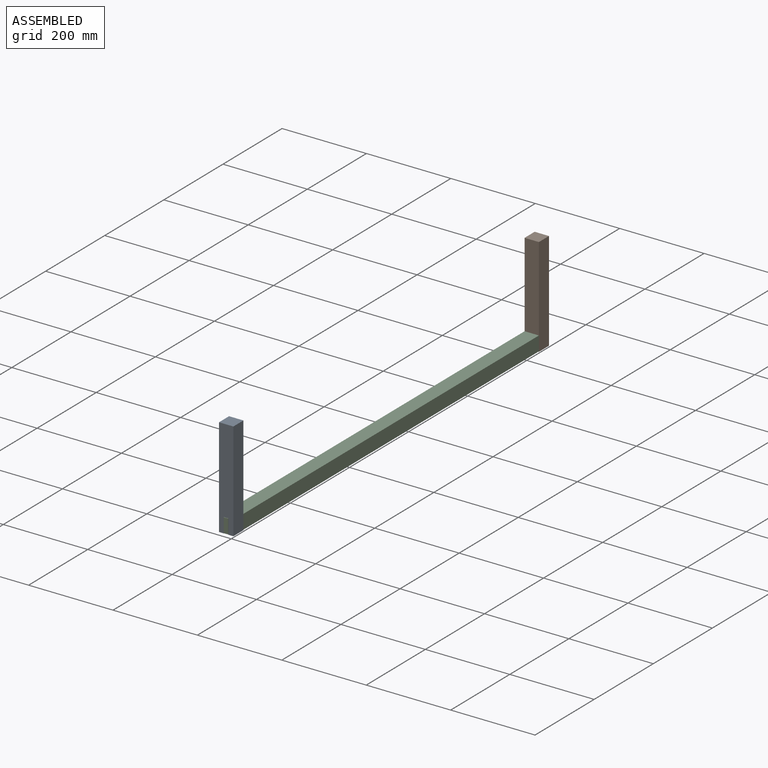
[diagram: assembled view]
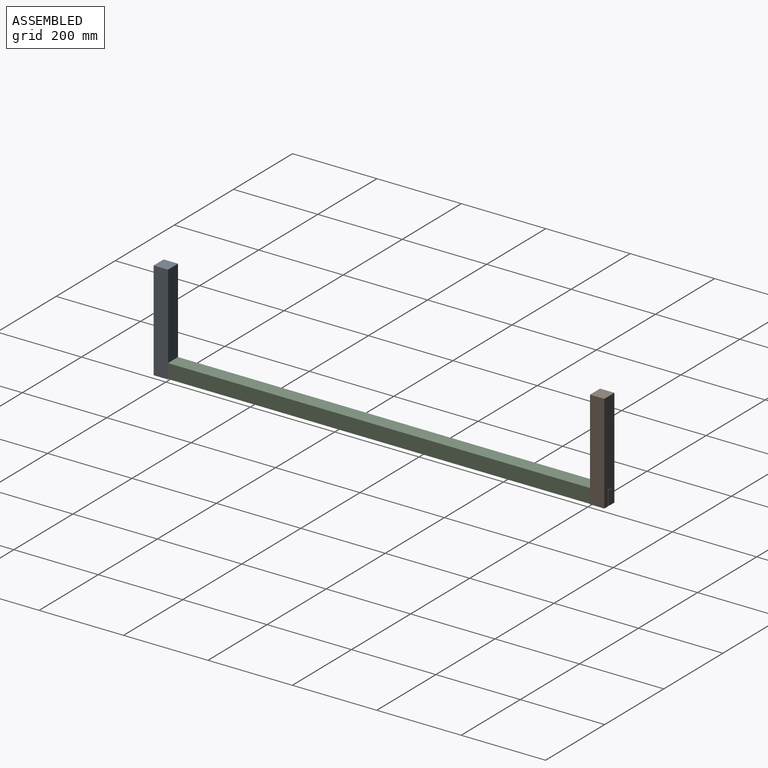
[diagram: assembled view, second angle]
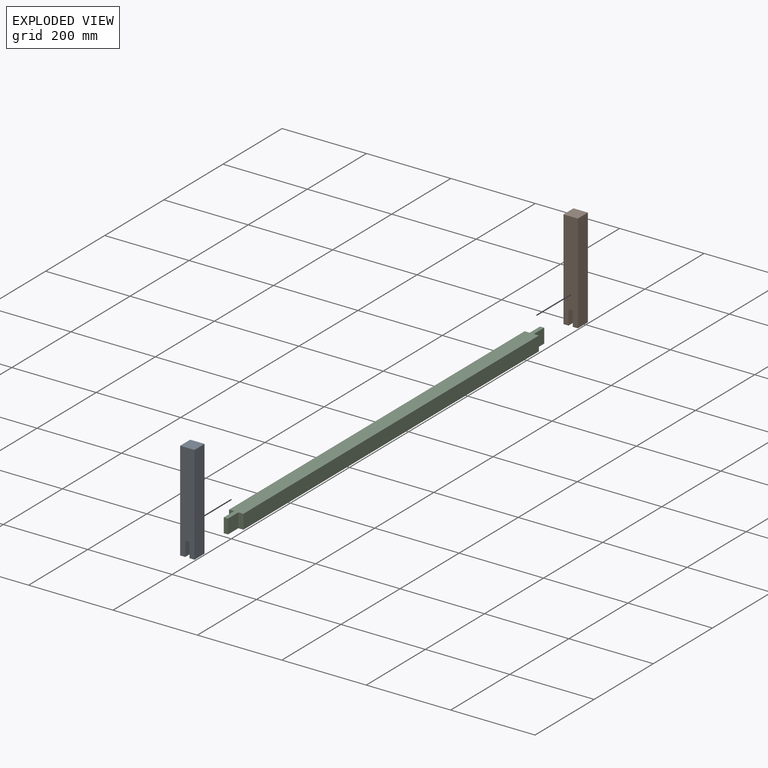
[diagram: exploded view]
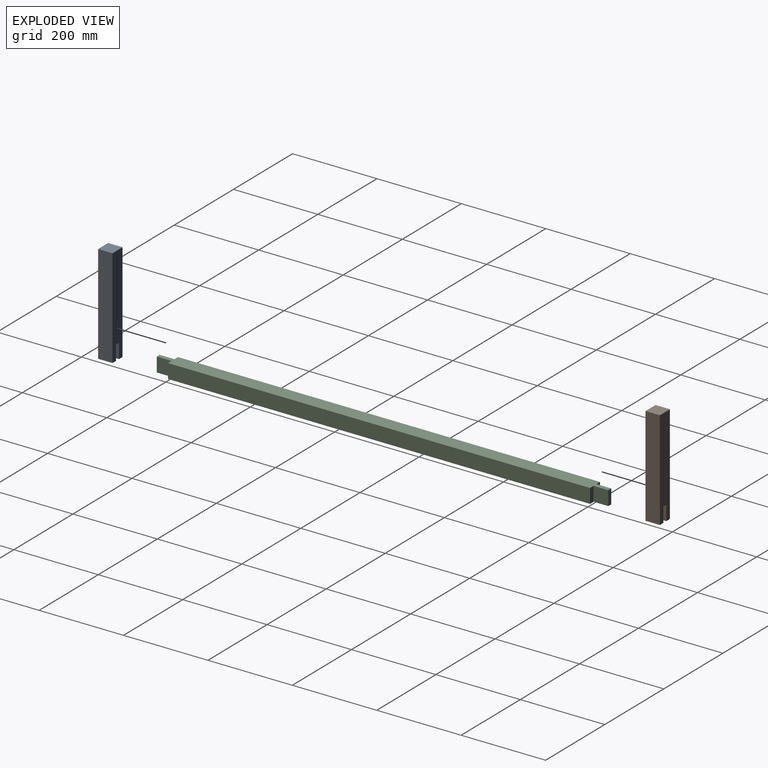
[diagram: exploded view, second angle]
FCSTD DOCUMENT  (FreeCAD 1.0R39109 (Git))
Label: 10_assembly_u-shape
License: All rights reserved
LicenseURL: http://en.wikipedia.org/wiki/All_rights_reserved
objects: App::FeaturePython×7, App::Link×3, Assembly::JointGroup×1, Assembly::AssemblyObject×1
EXTERNAL_REF file=11_foot.FCStd obj=Body
EXTERNAL_REF file=12_cross_beam.FCStd obj=Body

FEATURE [App::Link] Body
  LinkedObject = -> <external 11_foot.FCStd>#Body
FEATURE [App::FeaturePython] GroundedJoint  # Assembly grounded joint (typed FeaturePython)
  ObjectToGround = -> Body
FEATURE [App::Link] Body001
  LinkPlacement = pos=(1.87e-14,1034,-3.446e-13) rot=(0,0,1;3.14159rad)
  LinkedObject = -> <external 11_foot.FCStd>#Body
  Placement = pos=(1.87e-14,1034,-3.446e-13) rot=(0,0,1;3.14159rad)
FEATURE [App::Link] Body002
  LinkPlacement = pos=(-2.8e-15,-18,18) rot=(1,0,0;4.71239rad)
  LinkedObject = -> <external 12_cross_beam.FCStd>#Body
  Placement = pos=(-2.8e-15,-18,18) rot=(1,0,0;4.71239rad)
FEATURE [App::FeaturePython] Joint  label="Distance"  # Assembly joint (typed FeaturePython)
  Activated = true
  AngleMax = 0
  AngleMin = 0
  Detach1 = false
  Detach2 = false
  Distance = 1
  Distance2 = 0
  EnableAngleMax = false
  EnableAngleMin = false
  EnableLengthMax = false
  EnableLengthMin = false
  JointType = 5 (Distance)
  LengthMax = 0
  LengthMin = 0
  Placement1 = pos=(1e-15,3.02549e-11,0) rot=(0,0,1;0rad)
  Placement2 = pos=(4.5e-15,-17,122.081) rot=(-1,0,0;1.5708rad)
  Reference1 = -> Assembly [Body002.Face7,Body002.Face7]
  Reference2 = -> Assembly [Body.Face3,Body.Vertex12]
FEATURE [App::FeaturePython] Joint001  label="Distance001"  # Assembly joint (typed FeaturePython)
  Activated = true
  AngleMax = 0
  AngleMin = 0
  Detach1 = false
  Detach2 = false
  Distance = 0
  Distance2 = 0
  EnableAngleMax = false
  EnableAngleMin = false
  EnableLengthMax = false
  EnableLengthMin = false
  JointType = 5 (Distance)
  LengthMax = 0
  LengthMin = 0
  Placement1 = pos=(17,1.172e-13,535) rot=(-0.57735,-0.57735,0.57735;2.0944rad)
  Placement2 = pos=(17,-6.5e-15,117.5) rot=(-0.57735,-0.57735,0.57735;2.0944rad)
  Reference1 = -> Assembly [Body002.Face10,Body002.Vertex10]
  Reference2 = -> Assembly [Body.Face10,Body.Face10]
FEATURE [App::FeaturePython] Joint002  label="Distance002"  # Assembly joint (typed FeaturePython)
  Activated = true
  AngleMax = 0
  AngleMin = 0
  Detach1 = false
  Detach2 = false
  Distance = -1
  Distance2 = 0
  EnableAngleMax = false
  EnableAngleMin = false
  EnableLengthMax = false
  EnableLengthMin = false
  JointType = 5 (Distance)
  LengthMax = 0
  LengthMin = 0
  Placement1 = pos=(-1e-15,17,535) rot=(0,-0.707107,0.707107;3.14159rad)
  Placement2 = pos=(11,-6.1e-15,0) rot=(0,0,1;0rad)
  Reference1 = -> Assembly [Body002.Face5,Body002.Vertex18]
  Reference2 = -> Assembly [Body.Face6,Body.Vertex14]
FEATURE [App::FeaturePython] Joint003  label="Distance003"  # Assembly joint (typed FeaturePython)
  Activated = true
  AngleMax = 0
  AngleMin = 0
  Detach1 = false
  Detach2 = false
  Distance = 1
  Distance2 = 0
  EnableAngleMax = false
  EnableAngleMin = false
  EnableLengthMax = false
  EnableLengthMin = false
  JointType = 5 (Distance)
  LengthMax = 0
  LengthMin = 0
  Placement1 = pos=(11,0,0) rot=(0,0,1;0rad)
  Placement2 = pos=(-1e-15,17,535) rot=(0,-0.707107,0.707107;3.14159rad)
  Reference1 = -> Assembly [Body001.Face6,Body001.Face6]
  Reference2 = -> Assembly [Body002.Face5,Body002.Vertex16]
FEATURE [App::FeaturePython] Joint004  label="Distance004"  # Assembly joint (typed FeaturePython)
  Activated = true
  AngleMax = 0
  AngleMin = 0
  Detach1 = false
  Detach2 = false
  Distance = 0
  Distance2 = 0
  EnableAngleMax = false
  EnableAngleMin = false
  EnableLengthMax = false
  EnableLengthMin = false
  JointType = 5 (Distance)
  LengthMax = 0
  LengthMin = 0
  Placement1 = pos=(17,0,117.5) rot=(0.57735,0.57735,-0.57735;4.18879rad)
  Placement2 = pos=(-17,1.172e-13,535) rot=(0.57735,-0.57735,0.57735;4.18879rad)
  Reference1 = -> Assembly [Body001.Face10,Body001.Vertex15]
  Reference2 = -> Assembly [Body002.Face1,Body002.Vertex4]
FEATURE [App::FeaturePython] Joint005  label="Distance005"  # Assembly joint (typed FeaturePython)
  Activated = true
  AngleMax = 0
  AngleMin = 0
  Detach1 = false
  Detach2 = false
  Distance = -1
  Distance2 = 0
  EnableAngleMax = false
  EnableAngleMin = false
  EnableLengthMax = false
  EnableLengthMin = false
  JointType = 5 (Distance)
  LengthMax = 0
  LengthMin = 0
  Placement1 = pos=(1e-15,3.04929e-11,1070) rot=(0,0,1;0rad)
  Placement2 = pos=(3.8e-15,-17,122.081) rot=(1,0,0;4.71239rad)
  Reference1 = -> Assembly [Body002.Face13,Body002.Vertex22]
  Reference2 = -> Assembly [Body001.Face3,Body001.Vertex11]
FEATURE [Assembly::JointGroup] Joints
  Group = -> [GroundedJoint,Joint,Joint001,Joint002,Joint003,Joint004,Joint005]
FEATURE [Assembly::AssemblyObject] Assembly
  Group = -> [Joints,Body,GroundedJoint,Body001,Body002,Joint,Joint001,Joint002,Joint003,Joint004,Joint005]
  Origin = -> Origin
  Type = Assembly

RESOLVED EXTERNAL PARTS (link-assembly join: the EXTERNAL_REF files above that resolve inside this repo's crawl, each included once):
---- part 11_foot.FCStd = doc fcstd_6046575efeb6 ----
FCSTD DOCUMENT  (FreeCAD 1.0R39109 (Git))
Label: 02_foot
License: All rights reserved
LicenseURL: http://en.wikipedia.org/wiki/All_rights_reserved
objects: Sketcher::SketchObject×2, Spreadsheet::Sheet×1, PartDesign::Pad×1, PartDesign::Pocket×1, PartDesign::Body×1
note: 11 computed .brp shape members not serialized (recipe doc carries the construction recipe); baked Part::Feature solids carry a one-line shape summary decoded from their .brp

FEATURE [Sketcher::SketchObject] Sketch
  ArcFitTolerance = 1e-06
  AttachmentSupport = -> [XY_Plane]
  FullyConstrained = true
  MakeInternals = false
  MapMode = 5
  expr: Constraints[11] = Spreadsheet.width
  expr: Constraints[12] = Spreadsheet.height
  sketch-geometry (5):
    g0: LineSegment StartX=-17 StartY=17 StartZ=0 EndX=-17 EndY=-17 EndZ=0
    g1: LineSegment StartX=-17 StartY=-17 StartZ=0 EndX=17 EndY=-17 EndZ=0
    g2: LineSegment StartX=17 StartY=-17 StartZ=0 EndX=17 EndY=17 EndZ=0
    g3: LineSegment StartX=17 StartY=17 StartZ=0 EndX=-17 EndY=17 EndZ=0
    g4: LineSegment [constr] StartX=-17 StartY=17 StartZ=0 EndX=17 EndY=-17 EndZ=0
  constraints (13):
    c: Coincident(g0,g1)
    c: Coincident(g1,g2)
    c: Coincident(g2,g3)
    c: Coincident(g3,g0)
    c: Vertical(g0)
    c: Vertical(g2)
    c: Horizontal(g1)
    c: Horizontal(g3)
    c: Coincident(g4,g0)
    c: Coincident(g4,g1)
    c: Symmetric(g0,g1,g-1)
    c: DistanceX(g3,g3) = 34
    c: DistanceY(g0,g0) = 34
FEATURE [Spreadsheet::Sheet] Spreadsheet
  cells = A2='Breite; B2(width)=34; A3='Höhe; B3(height)=34; A4='Länge; B4(length)==width + 200 + 1; A5='Breite Schlitz; B5(widthmortise)=10; A6='Tiefe Schlitz; B6(depthmortise)=35
FEATURE [PartDesign::Pad] Pad
  Direction = (0,0,1)
  Length = 235
  Length2 = 10
  Profile = -> Sketch
  ReferenceAxis = -> Sketch [N_Axis]
  Suppressed = false
  Type = 0
  expr: Length = Spreadsheet.length
FEATURE [Sketcher::SketchObject] Sketch001
  ArcFitTolerance = 1e-06
  AttachmentSupport = -> [XY_Plane]
  FullyConstrained = true
  MakeInternals = false
  MapMode = 5
  expr: Constraints[10] = Spreadsheet.widthmortise
  expr: Constraints[11] = Spreadsheet.widthmortise / 2
  expr: Constraints[8] = Spreadsheet.width
  expr: Constraints[9] = Spreadsheet.width / 2
  sketch-geometry (4):
    g0: LineSegment StartX=-5 StartY=-17 StartZ=0 EndX=5 EndY=-17 EndZ=0
    g1: LineSegment StartX=5 StartY=-17 StartZ=0 EndX=5 EndY=17 EndZ=0
    g2: LineSegment StartX=5 StartY=17 StartZ=0 EndX=-5 EndY=17 EndZ=0
    g3: LineSegment StartX=-5 StartY=17 StartZ=0 EndX=-5 EndY=-17 EndZ=0
  constraints (12):
    c: Coincident(g0,g1)
    c: Coincident(g1,g2)
    c: Coincident(g2,g3)
    c: Coincident(g3,g0)
    c: Horizontal(g0)
    c: Horizontal(g2)
    c: Vertical(g1)
    c: Vertical(g3)
    c: DistanceY(g3,g3) = 34
    c: Distance(g-1,g2) = 17
    c: DistanceX(g2,g2) = 10
    c: Distance(g1,g-2) = 5
FEATURE [PartDesign::Pocket] Pocket
  BaseFeature = -> Pad
  Direction = (0,0,-1)
  Length = 35
  Length2 = 5
  Profile = -> Sketch001
  ReferenceAxis = -> Sketch001 [N_Axis]
  Reversed = true
  Suppressed = false
  Type = 0
  expr: Length = Spreadsheet.depthmortise
FEATURE [PartDesign::Body] Body
  AllowCompound = false
  Group = -> [Sketch,Pad,Sketch001,Pocket]
  Origin = -> Origin
  Tip = -> Pocket
---- part 12_cross_beam.FCStd = doc fcstd_1ac66e55c143 ----
FCSTD DOCUMENT  (FreeCAD 1.0R39109 (Git))
Label: 03_cross_beam
License: All rights reserved
LicenseURL: http://en.wikipedia.org/wiki/All_rights_reserved
objects: Sketcher::SketchObject×2, Spreadsheet::Sheet×1, PartDesign::Pad×1, PartDesign::Pocket×1, PartDesign::Plane×1, PartDesign::Mirrored×1, PartDesign::Body×1
note: 14 computed .brp shape members not serialized (recipe doc carries the construction recipe); baked Part::Feature solids carry a one-line shape summary decoded from their .brp

FEATURE [Spreadsheet::Sheet] Spreadsheet
  cells = A2='Breite; B2(width)=34; A3='Höhe; B3(height)=34; A4='Länge; B4(length)==2 * width + 1000 + 2; C4='Links und Rechts 1mm Überstand; A5='Breite Zapfen; B5(widthtenon)=12; A6='Tiefe Zapfen; B6(depthtenon)=35; A7='Breite Schlitz; B7(widthmortise)=10
FEATURE [Sketcher::SketchObject] Sketch
  ArcFitTolerance = 1e-06
  AttachmentSupport = -> [XY_Plane]
  FullyConstrained = true
  MakeInternals = false
  MapMode = 5
  expr: Constraints[11] = Spreadsheet.width
  expr: Constraints[12] = Spreadsheet.height
  sketch-geometry (5):
    g0: LineSegment StartX=-17 StartY=17 StartZ=0 EndX=-17 EndY=-17 EndZ=0
    g1: LineSegment StartX=-17 StartY=-17 StartZ=0 EndX=17 EndY=-17 EndZ=0
    g2: LineSegment StartX=17 StartY=-17 StartZ=0 EndX=17 EndY=17 EndZ=0
    g3: LineSegment StartX=17 StartY=17 StartZ=0 EndX=-17 EndY=17 EndZ=0
    g4: LineSegment [constr] StartX=-17 StartY=17 StartZ=0 EndX=17 EndY=-17 EndZ=0
  constraints (13):
    c: Coincident(g0,g1)
    c: Coincident(g1,g2)
    c: Coincident(g2,g3)
    c: Coincident(g3,g0)
    c: Vertical(g0)
    c: Vertical(g2)
    c: Horizontal(g1)
    c: Horizontal(g3)
    c: Coincident(g4,g0)
    c: Coincident(g4,g1)
    c: Symmetric(g0,g1,g-1)
    c: DistanceX(g3,g3) = 34
    c: DistanceY(g2,g2) = 34
FEATURE [PartDesign::Pad] Pad
  Direction = (0,0,1)
  Length = 1070
  Length2 = 10
  Profile = -> Sketch
  ReferenceAxis = -> Sketch [N_Axis]
  Suppressed = false
  Type = 0
  expr: Length = Spreadsheet.length
FEATURE [Sketcher::SketchObject] Sketch001
  ArcFitTolerance = 1e-06
  AttachmentSupport = -> [XY_Plane]
  FullyConstrained = true
  MakeInternals = false
  MapMode = 5
  expr: Constraints[16] = Spreadsheet.widthtenon
  expr: Constraints[18] = Spreadsheet.widthmortise
  expr: Constraints[19] = Spreadsheet.height
  expr: Constraints[24] = Spreadsheet.height / 2
  expr: Constraints[25] = Spreadsheet.width / 2
  sketch-geometry (9):
    g0: LineSegment StartX=-17 StartY=17 StartZ=0 EndX=-17 EndY=-17 EndZ=0
    g1: LineSegment StartX=-17 StartY=-17 StartZ=0 EndX=-5 EndY=-17 EndZ=0
    g2: LineSegment StartX=-5 StartY=-17 StartZ=0 EndX=-5 EndY=17 EndZ=0
    g3: LineSegment StartX=-5 StartY=17 StartZ=0 EndX=-17 EndY=17 EndZ=0
    g4: LineSegment StartX=17 StartY=-17 StartZ=0 EndX=17 EndY=17 EndZ=0
    g5: LineSegment StartX=17 StartY=17 StartZ=0 EndX=5 EndY=17 EndZ=0
    g6: LineSegment StartX=5 StartY=17 StartZ=0 EndX=5 EndY=-17 EndZ=0
    g7: LineSegment StartX=5 StartY=-17 StartZ=0 EndX=17 EndY=-17 EndZ=0
    g8: LineSegment [constr] StartX=-5 StartY=17 StartZ=0 EndX=5 EndY=17 EndZ=0
  constraints (26):
    c: Coincident(g0,g1)
    c: Coincident(g1,g2)
    c: Coincident(g2,g3)
    c: Coincident(g3,g0)
    c: Vertical(g0)
    c: Vertical(g2)
    c: Horizontal(g1)
    c: Horizontal(g3)
    c: Coincident(g4,g5)
    c: Coincident(g5,g6)
    c: Coincident(g6,g7)
    c: Coincident(g7,g4)
    c: Vertical(g4)
    c: Vertical(g6)
    c: Horizontal(g5)
    c: Horizontal(g7)
    c: DistanceX(g3,g3) = 12
    c: Equal(g3,g5)
    c: DistanceX(g2,g5) = 10
    c: DistanceY(g0,g0) = 34
    c: Equal(g0,g6)
    c: Coincident(g8,g2)
    c: Coincident(g8,g5)
    c: Horizontal(g8)
    c: Distance(g-1,g8) = 17
    c: Distance(g-2,g0) = 17
FEATURE [PartDesign::Pocket] Pocket
  BaseFeature = -> Pad
  Direction = (0,0,-1)
  Length = 35
  Length2 = 5
  Profile = -> Sketch001
  ReferenceAxis = -> Sketch001 [N_Axis]
  Reversed = true
  Suppressed = false
  Type = 0
  expr: Length = Spreadsheet.depthtenon
FEATURE [PartDesign::Plane] DatumPlane
  Length = 60
  MapMode = 2
  Placement = pos=(0,0,535) rot=(0,0,1;0rad)
  ResizeMode = 0
  Width = 60
  expr: .Placement.Base.z = Spreadsheet.length / 2
FEATURE [PartDesign::Mirrored] Mirrored
  BaseFeature = -> Pocket
  MirrorPlane = -> DatumPlane
  Originals = -> [Pocket]
  Suppressed = false
  TransformMode = 0
FEATURE [PartDesign::Body] Body
  AllowCompound = false
  Group = -> [Sketch,Pad,Sketch001,Pocket,DatumPlane,Mirrored]
  Origin = -> Origin
  Tip = -> Mirrored
